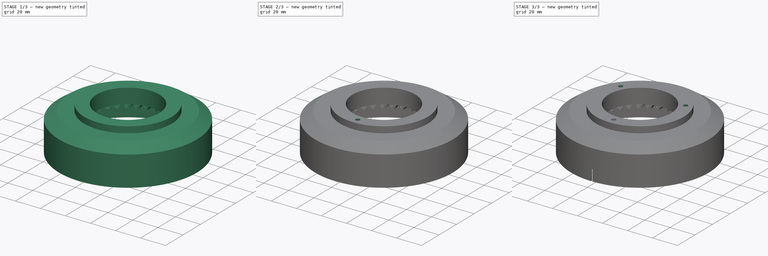
[diagram: build sequence overview — one tinted view per stage of 3, left to right]
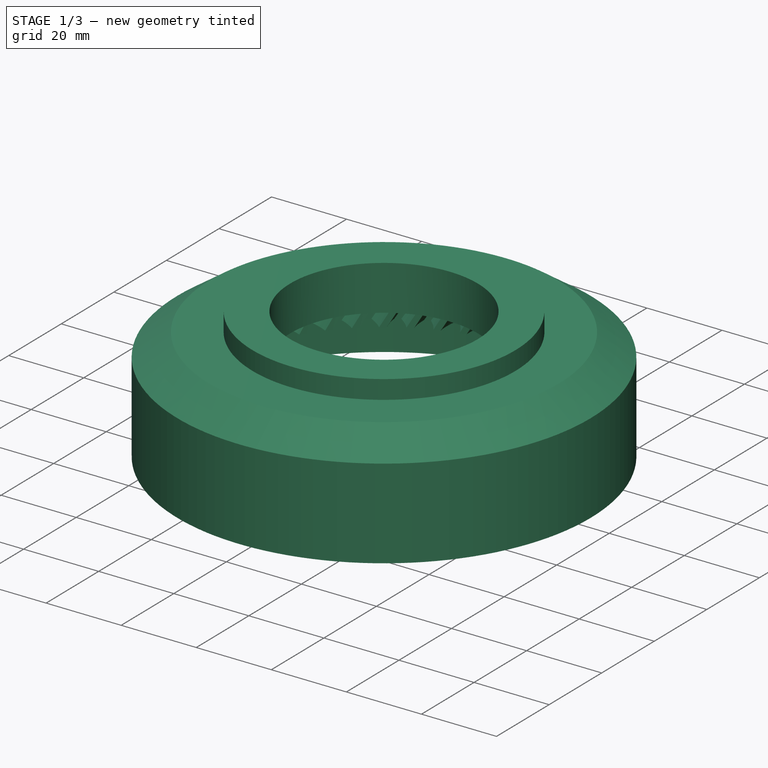
[diagram: stage 1 of 3 — iso view after this stage's code; geometry added in this stage tinted green]
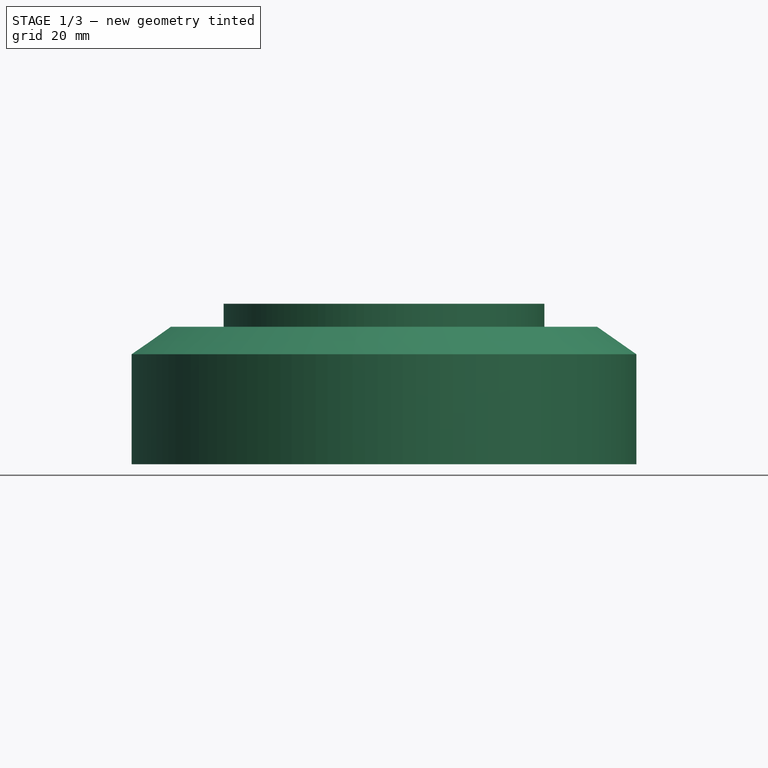
[diagram: stage 1 of 3 — front view after this stage's code; geometry added in this stage tinted green]
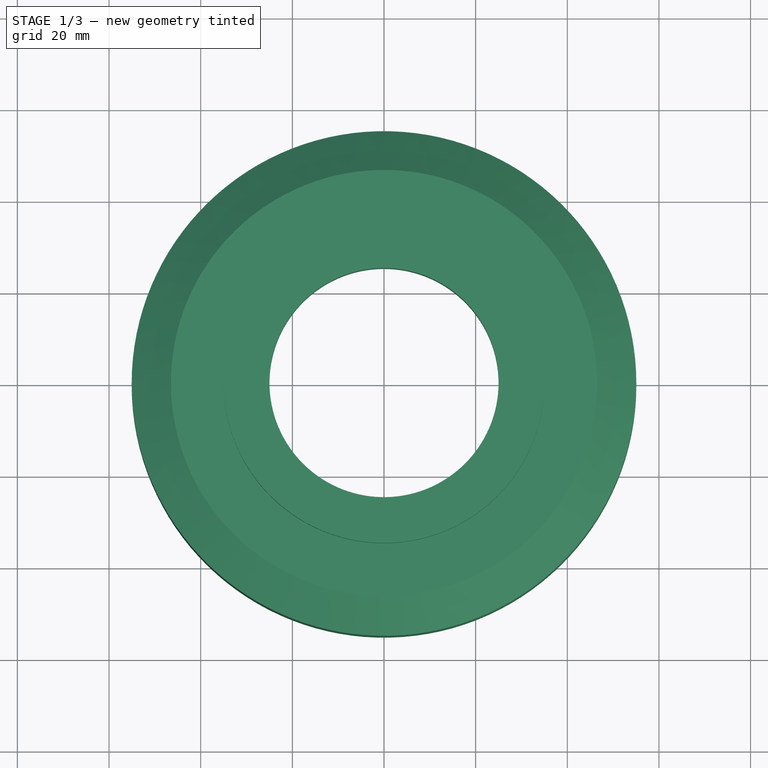
[diagram: stage 1 of 3 — top view after this stage's code; geometry added in this stage tinted green]
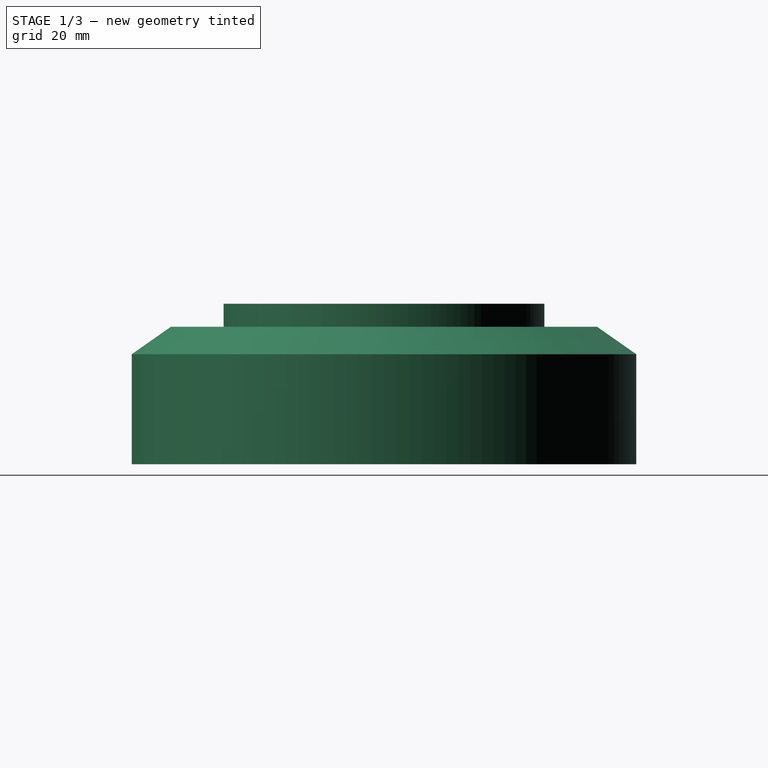
[diagram: stage 1 of 3 — right view after this stage's code; geometry added in this stage tinted green]
FCSTD DOCUMENT  (FreeCAD 0.19R24276 (Git))
Label: Art1Bot
License: All rights reserved
LicenseURL: http://en.wikipedia.org/wiki/All_rights_reserved
objects: Sketcher::SketchObject×4, PartDesign::Pocket×3, PartDesign::Line×3, PartDesign::Body×2, PartDesign::CoordinateSystem×2, PartDesign::Revolution×1, Part::FeaturePython×1, Part::Cut×1, PartDesign::FeatureBase×1, Spreadsheet::Sheet×1, PartDesign::PolarPattern×1
note: 23 computed .brp shape members not serialized (recipe doc carries the construction recipe); baked Part::Feature solids carry a one-line shape summary decoded from their .brp

FEATURE [Sketcher::SketchObject] Sketch
  FullyConstrained = true
  MapMode = 5
  Placement = pos=(0,0,0) rot=(1,0,0;1.5708rad)
  Support = -> [XZ_Plane]
  sketch-geometry (9):
    g0: LineSegment StartX=25 StartY=35 StartZ=0 EndX=35 EndY=35 EndZ=0
    g1: LineSegment StartX=35 StartY=35 StartZ=0 EndX=35 EndY=30 EndZ=0
    g2: LineSegment StartX=35 StartY=30 StartZ=0 EndX=46.5 EndY=30 EndZ=0
    g3: LineSegment StartX=46.5 StartY=30 StartZ=0 EndX=55.0689 EndY=24 EndZ=0
    g4: LineSegment StartX=55.0689 StartY=24 StartZ=0 EndX=55.0689 EndY=0 EndZ=0
    g5: LineSegment StartX=55.0689 StartY=0 StartZ=0 EndX=54.0689 EndY=0 EndZ=0
    g6: LineSegment StartX=54.0689 StartY=0 StartZ=0 EndX=54.0689 EndY=9 EndZ=0
    g7: LineSegment StartX=54.0689 StartY=9 StartZ=0 EndX=25 EndY=9 EndZ=0
    g8: LineSegment StartX=25 StartY=9 StartZ=0 EndX=25 EndY=35 EndZ=0
  constraints (27):
    c: Horizontal(g0)
    c: Coincident(g0,g1)
    c: Vertical(g1)
    c: Coincident(g1,g2)
    c: Horizontal(g2)
    c: Coincident(g2,g3)
    c: Coincident(g3,g4)
    c: Vertical(g4)
    c: Coincident(g4,g5)
    c: PointOnObject(g5,g-1)
    c: Coincident(g5,g6)
    c: Vertical(g6)
    c: Coincident(g6,g7)
    c: Horizontal(g7)
    c: Coincident(g7,g8)
    c: Coincident(g8,g0)
    c: Vertical(g8)
    c: Horizontal(g5)
    c: DistanceX(g5,g5) = 1
    c: DistanceX(g-1,g7) = 25
    c: DistanceX(g-1,g0) = 35
    c: DistanceX(g2,g2) = 11.5
    c: Angle(g3,g7) = 0.610865
    c: DistanceY(g6,g3) = 15
    c: DistanceY(g3,g3) = 6
    c: DistanceY(g5,g6) = 9
    c: DistanceY(g1,g1) = 5
FEATURE [PartDesign::Revolution] Revolution
  Angle = 360
  Axis = (0,2e-16,1)
  Base = (0,0,0)
  Placement = pos=(0,0,0) rot=(1,0,0;1.5708rad)
  Profile = -> Sketch
  ReferenceAxis = -> Sketch [V_Axis]
  Refine = true
  Reversed = true
FEATURE [PartDesign::Body] Body
  Group = -> [Sketch,Revolution]
  Origin = -> Origin
  Tip = -> Revolution
FEATURE [Part::FeaturePython] involutegear  # WARN: FeaturePython — macro-defined, semantics opaque (R4)
  Placement = pos=(0,0,8) rot=(0,0,1;0rad)
  backlash = 0
  beta = -32
  clearance = 0.25
  double_helix = false
  dw = 100
  head = 0
  height = 15
  module = 2
  numpoints = 6
  pressure_angle = 20
  properties_from_tool = false
  reversed_backlash = false
  shift = 0
  simple = false
  teeth = 50
  transverse_pitch = 6.28319
  undercut = false
  version = 0.0.3
FEATURE [Part::Cut] Cut
  Base = -> Body
  Refine = true
  Tool = -> involutegear
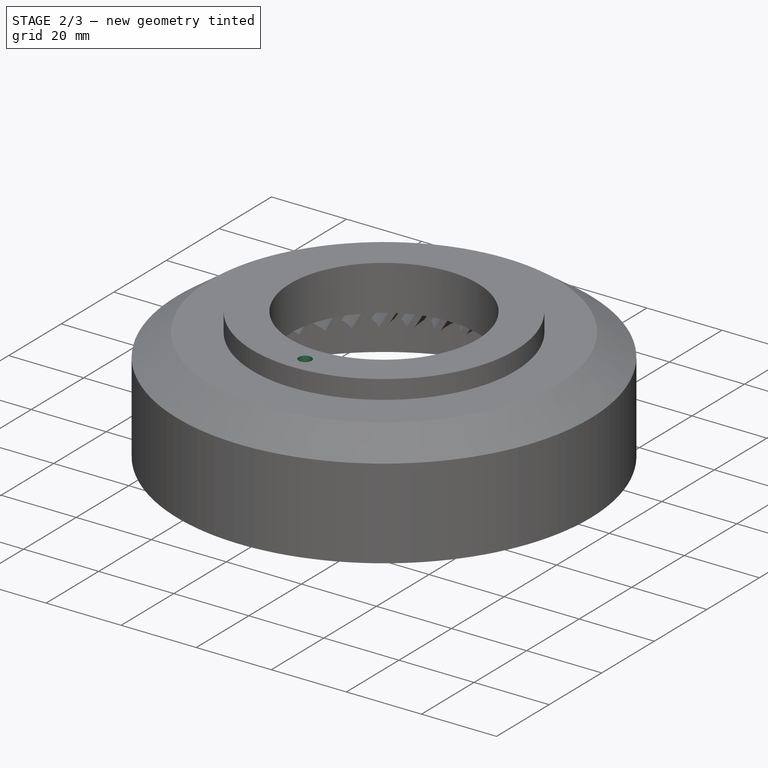
[diagram: stage 2 of 3 — iso view after this stage's code; geometry added in this stage tinted green]
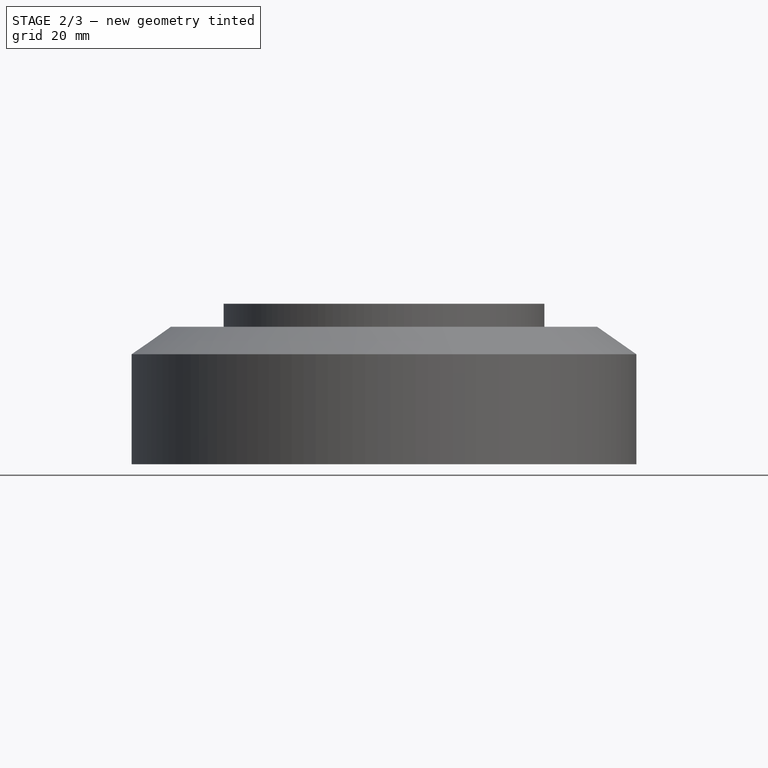
[diagram: stage 2 of 3 — front view after this stage's code; geometry added in this stage tinted green]
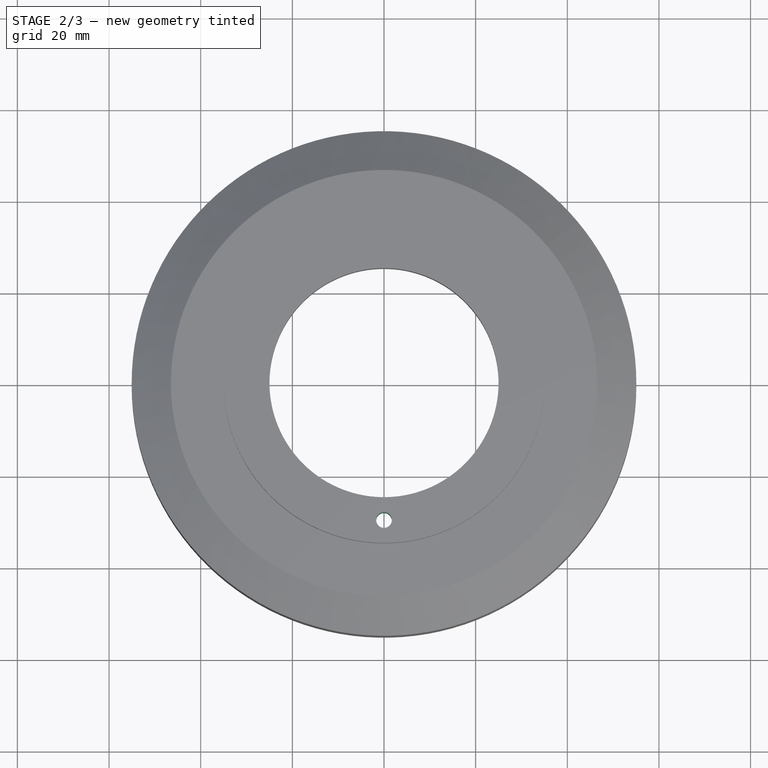
[diagram: stage 2 of 3 — top view after this stage's code; geometry added in this stage tinted green]
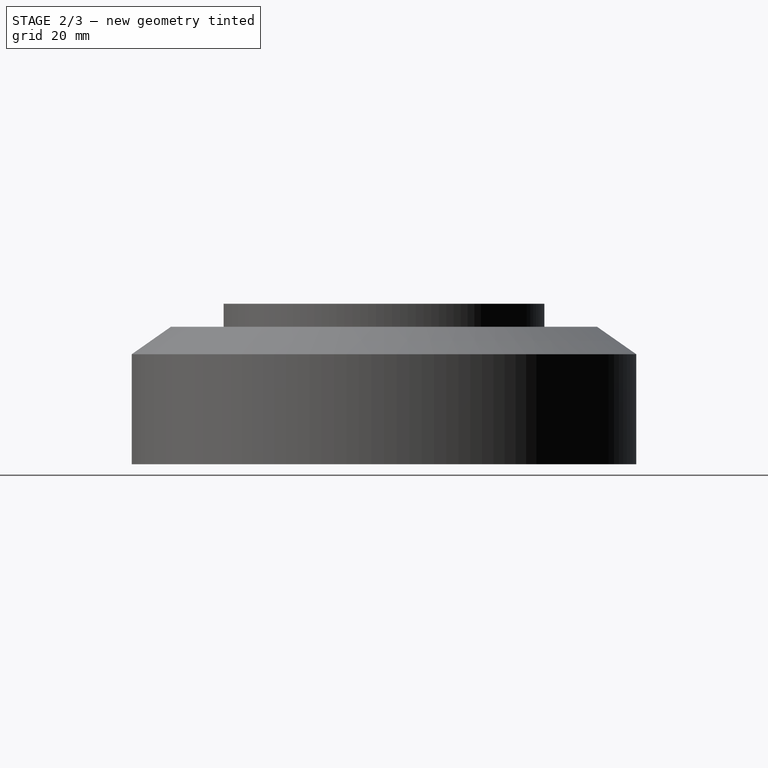
[diagram: stage 2 of 3 — right view after this stage's code; geometry added in this stage tinted green]
FEATURE [PartDesign::FeatureBase] BaseFeature
  BaseFeature = -> Cut
FEATURE [Sketcher::SketchObject] Sketch001
  FullyConstrained = true
  MapMode = 5
  Placement = pos=(0.000304168,-5.7714e-05,23.0001) rot=(1,0,-7e-06;3.1416rad)
  Support = -> [BaseFeature]
  expr: Constraints[2] = Spreadsheet.M3BoltBodyRadius
  sketch-geometry (1):
    g0: Circle CenterX=0 CenterY=30 CenterZ=0 NormalX=0 NormalY=0 NormalZ=1 AngleXU=0 Radius=1.7
  constraints (3):
    c: PointOnObject(g0,g-2)
    c: DistanceY(g-1,g0) = 30
    c: Radius(g0) = 1.7
FEATURE [Spreadsheet::Sheet] Spreadsheet
  cells = A2=M3BoltBodyRadius; B2(M3BoltBodyRadius)=1.7; A3=M3BoltHeadRadius; B3(M3BoltHeadRadius)=2.95; A4=M3NutCircumradius; B4(M3NutCircumradius)=3.35; A5=M3NutThickness; B5(M3NutThickness)=3; A6=Bearing655ZZBodyRadius; B6(Bearing655ZZBodyRadius)=8.199999999999999
FEATURE [PartDesign::Pocket] Pocket
  BaseFeature = -> BaseFeature
  Length = 5
  Length2 = 100
  Profile = -> Sketch001
  Refine = true
  Type = 1
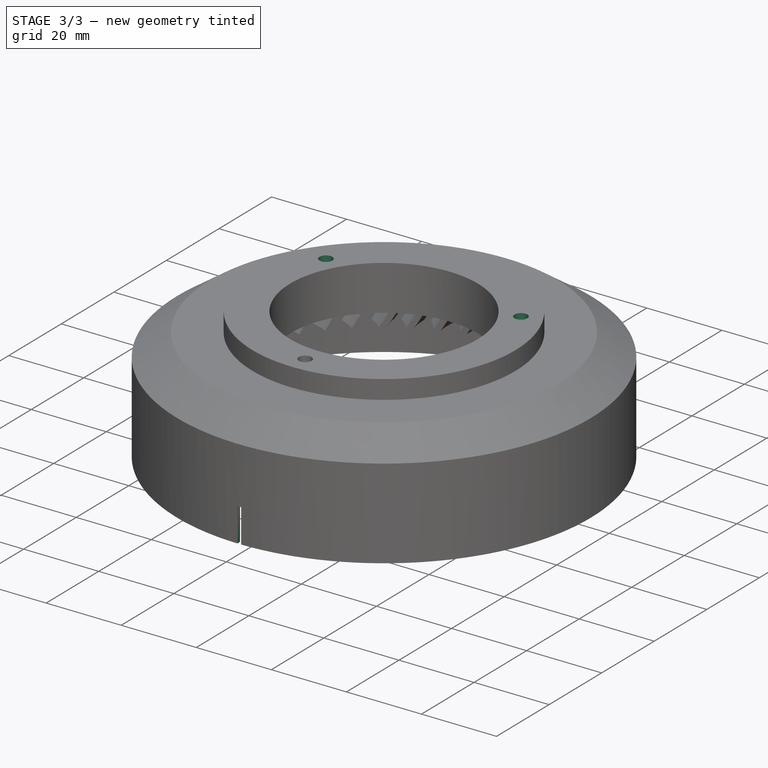
[diagram: stage 3 of 3 — iso view after this stage's code; geometry added in this stage tinted green]
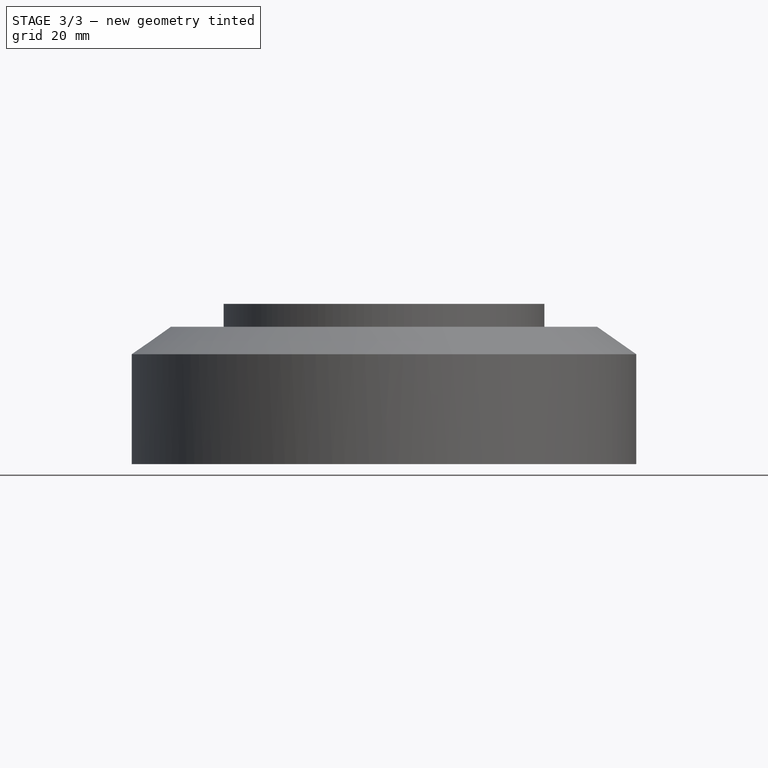
[diagram: stage 3 of 3 — front view after this stage's code; geometry added in this stage tinted green]
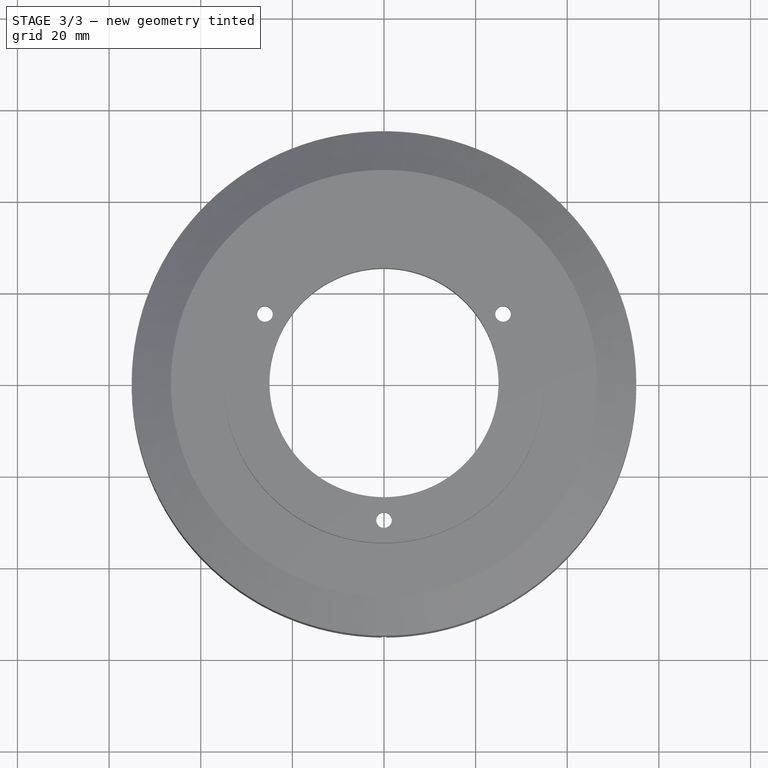
[diagram: stage 3 of 3 — top view after this stage's code; geometry added in this stage tinted green]
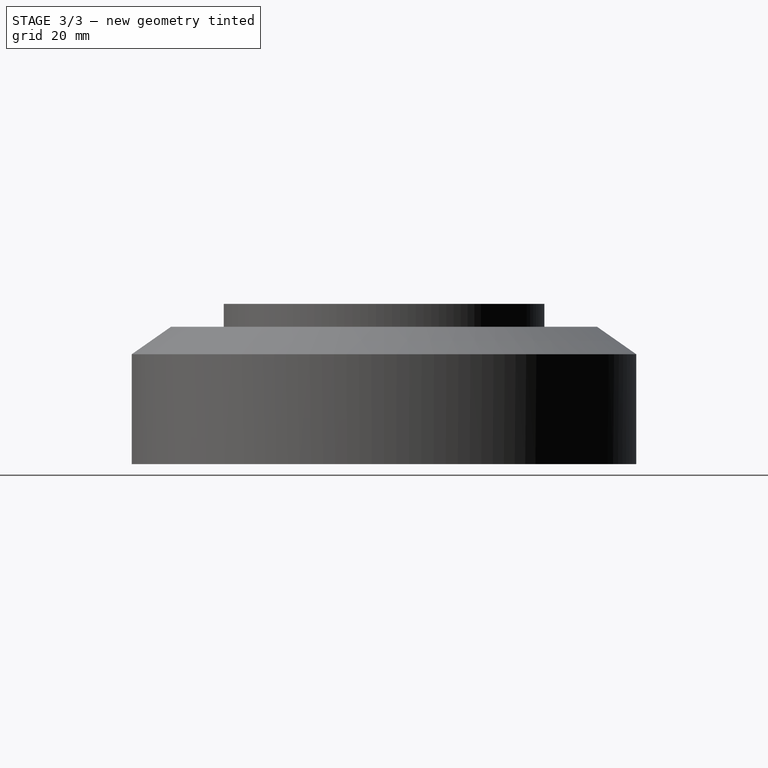
[diagram: stage 3 of 3 — right view after this stage's code; geometry added in this stage tinted green]
FEATURE [Sketcher::SketchObject] Sketch002
  ExternalGeometry = -> [Pocket]
  FullyConstrained = true
  MapMode = 5
  Placement = pos=(0.000304168,-5.7714e-05,23.0001) rot=(1,0,-7e-06;3.1416rad)
  Support = -> [Pocket]
  expr: Constraints[19] = Spreadsheet.M3NutCircumradius
  sketch-geometry (7):
    g0: LineSegment StartX=3.35 StartY=30 StartZ=0 EndX=1.675 EndY=32.9012 EndZ=0
    g1: LineSegment StartX=1.675 StartY=32.9012 StartZ=0 EndX=-1.675 EndY=32.9012 EndZ=0
    g2: LineSegment StartX=-1.675 StartY=32.9012 StartZ=0 EndX=-3.35 EndY=30 EndZ=0
    g3: LineSegment StartX=-3.35 StartY=30 StartZ=0 EndX=-1.675 EndY=27.0988 EndZ=0
    g4: LineSegment StartX=-1.675 StartY=27.0988 StartZ=0 EndX=1.675 EndY=27.0988 EndZ=0
    g5: LineSegment StartX=1.675 StartY=27.0988 StartZ=0 EndX=3.35 EndY=30 EndZ=0
    g6: Circle CenterX=0 CenterY=30 CenterZ=0 NormalX=0 NormalY=0 NormalZ=1 AngleXU=0 Radius=3.35
  constraints (16):
    c: Coincident(g0,g1)
    c: Coincident(g1,g2)
    c: Coincident(g2,g3)
    c: Coincident(g3,g4)
    c: Coincident(g4,g5)
    c: Coincident(g5,g0)
    c: Equal(g0, g1-g5) x5
    c: PointOnObject(g0,g6)
    c: PointOnObject(g1,g6)
    c: PointOnObject(g2,g6)
    c: PointOnObject(g3,g6)
    c: PointOnObject(g4,g6)
    c: PointOnObject(g5,g6)
    c: Coincident(g6,g-3)
    c: Horizontal(g4)
    c: Radius(g6) = 3.35
FEATURE [PartDesign::Pocket] Pocket001
  BaseFeature = -> Pocket
  Length = 6
  Length2 = 100
  Profile = -> Sketch002
  Refine = true
  Type = 0
FEATURE [PartDesign::PolarPattern] PolarPattern
  Angle = 360
  Axis = -> Sketch002 [N_Axis]
  BaseFeature = -> Pocket001
  Occurrences = 3
  Originals = -> [Pocket001,Pocket]
  Refine = true
FEATURE [Sketcher::SketchObject] Sketch003
  FullyConstrained = true
  MapMode = 5
  Placement = pos=(0,0,0) rot=(1,0,0;3.14159rad)
  Support = -> [PolarPattern]
  sketch-geometry (4):
    g0: LineSegment StartX=-0.5 StartY=60 StartZ=0 EndX=0.5 EndY=60 EndZ=0
    g1: LineSegment StartX=0.5 StartY=60 StartZ=0 EndX=0.5 EndY=50 EndZ=0
    g2: LineSegment StartX=0.5 StartY=50 StartZ=0 EndX=-0.5 EndY=50 EndZ=0
    g3: LineSegment StartX=-0.5 StartY=50 StartZ=0 EndX=-0.5 EndY=60 EndZ=0
  constraints (11):
    c: Coincident(g0,g1)
    c: Coincident(g1,g2)
    c: Coincident(g2,g3)
    c: Coincident(g3,g0)
    c: Horizontal(g2)
    c: Vertical(g1)
    c: Vertical(g3)
    c: Symmetric(g0,g0,g-2)
    c: DistanceX(g2,g2) = 1
    c: DistanceY(g-1,g1) = 50
    c: DistanceY(g1,g1) = 10
FEATURE [PartDesign::Pocket] Pocket002
  BaseFeature = -> PolarPattern
  Length = 9
  Length2 = 100
  Profile = -> Sketch003
  Refine = true
  Type = 0
FEATURE [PartDesign::CoordinateSystem] LCS_Art1Bot
  AttacherType = Attacher::AttachEngine3D
  MapMode = 11
  Placement = pos=(7.1e-15,2e-14,30) rot=(0.707107,-0.707107,0;3.14159rad)
  Support = -> [Pocket002]
FEATURE [PartDesign::Line] HoleAxis_1
  AttacherType = Attacher::AttachEngineLine
  Length = 4.79083
  MapMode = 19
  Placement = pos=(0.000383515,-30.0001,29.0001) rot=(-1,0,7e-06;3.14159rad)
  ResizeMode = 1
  Support = -> [Pocket002]
FEATURE [PartDesign::Line] HoleAxis_2
  AttacherType = Attacher::AttachEngineLine
  Length = 4.79858
  MapMode = 19
  Placement = pos=(25.9811,14.9999,28.9998) rot=(-0.5,-0.866025,2e-06;3.14158rad)
  ResizeMode = 1
  Support = -> [Pocket002]
FEATURE [PartDesign::Line] HoleAxis_3
  AttacherType = Attacher::AttachEngineLine
  Length = 4.79858
  MapMode = 19
  Placement = pos=(-25.9804,14.9999,29.0005) rot=(-0.5,0.866025,4e-06;3.1416rad)
  ResizeMode = 1
  Support = -> [Pocket002]
FEATURE [PartDesign::CoordinateSystem] LCS_Top
  AttacherType = Attacher::AttachEngine3D
  MapMode = 45
  Placement = pos=(0.000462861,-8.78251e-05,35) rot=(0,0,1;1.38328rad)
  Support = -> [Pocket002]
FEATURE [PartDesign::Body] Body001  label="Art1Bot"
  BaseFeature = -> Cut
  Group = -> [BaseFeature,Sketch001,Pocket,Sketch002,Pocket001,PolarPattern,Sketch003,Pocket002,LCS_Art1Bot,HoleAxis_1,HoleAxis_2,HoleAxis_3,LCS_Top]
  Origin = -> Origin001
  Tip = -> Pocket002
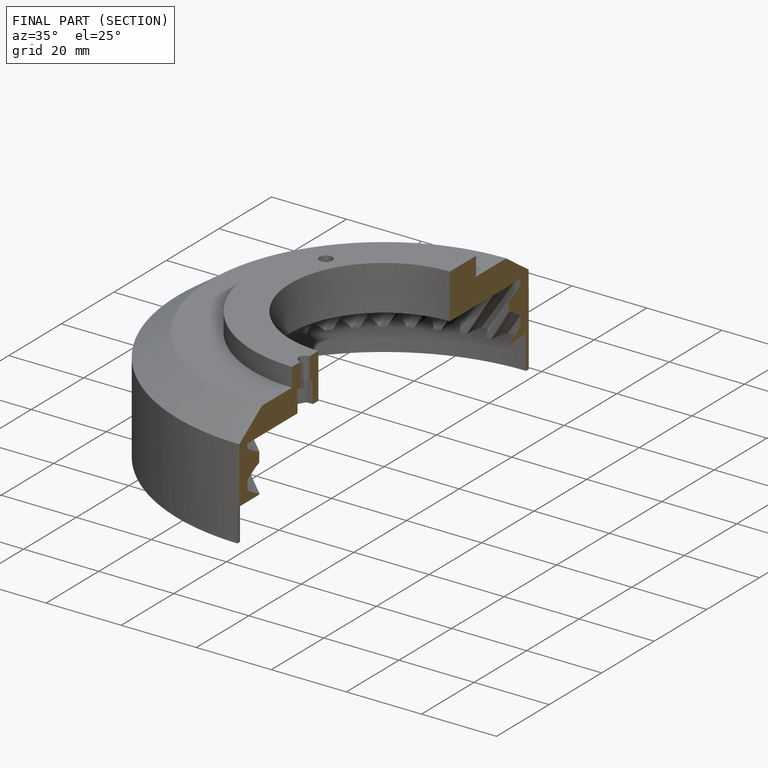
[diagram: finished part — half-section view (interior)]
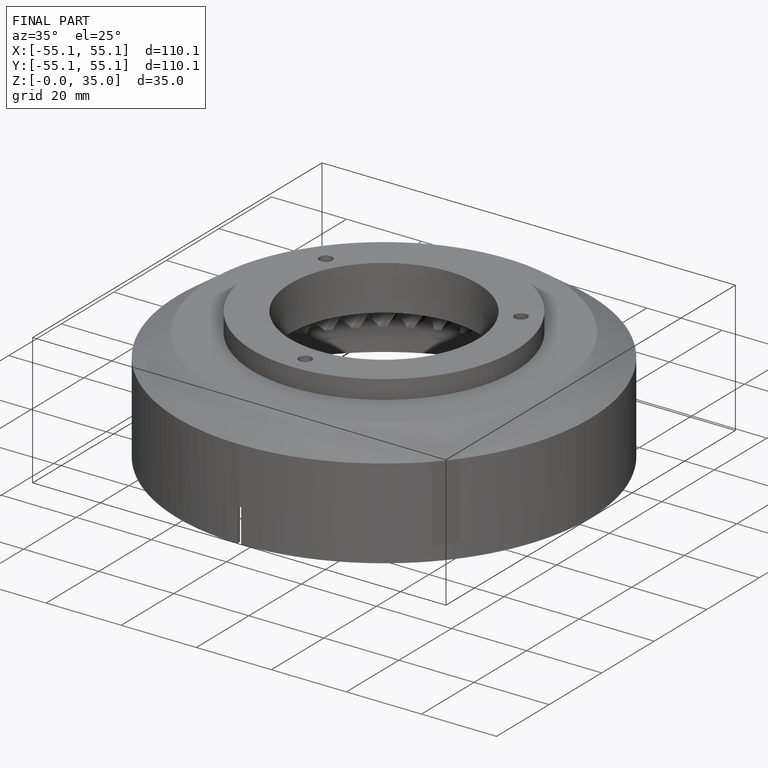
[diagram: finished part — iso view with bounding-box wireframe]
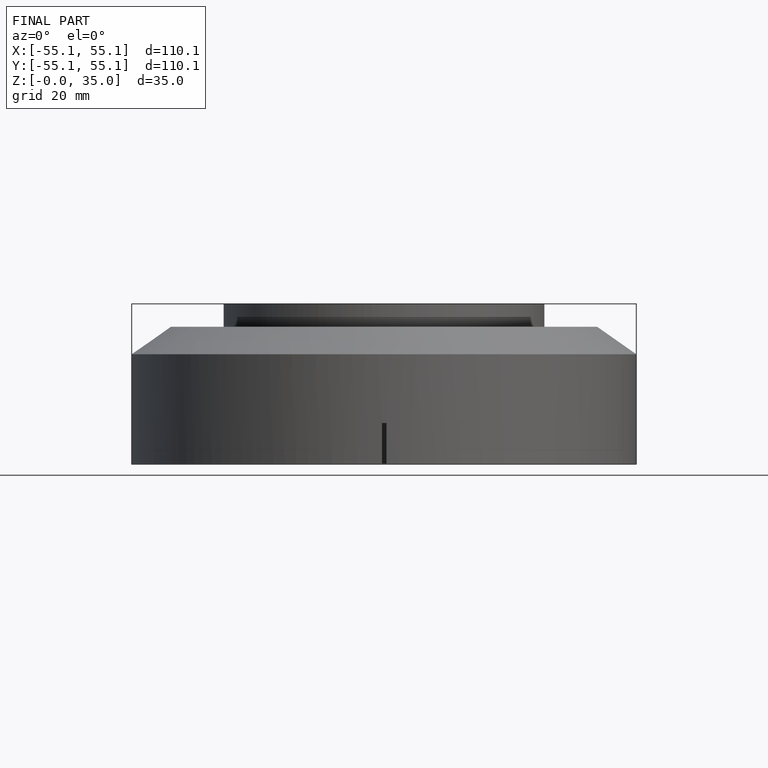
[diagram: finished part — front view with bounding-box wireframe]
